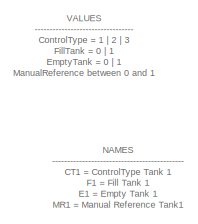
[diagram: root canvas - part 1/2, top left region]
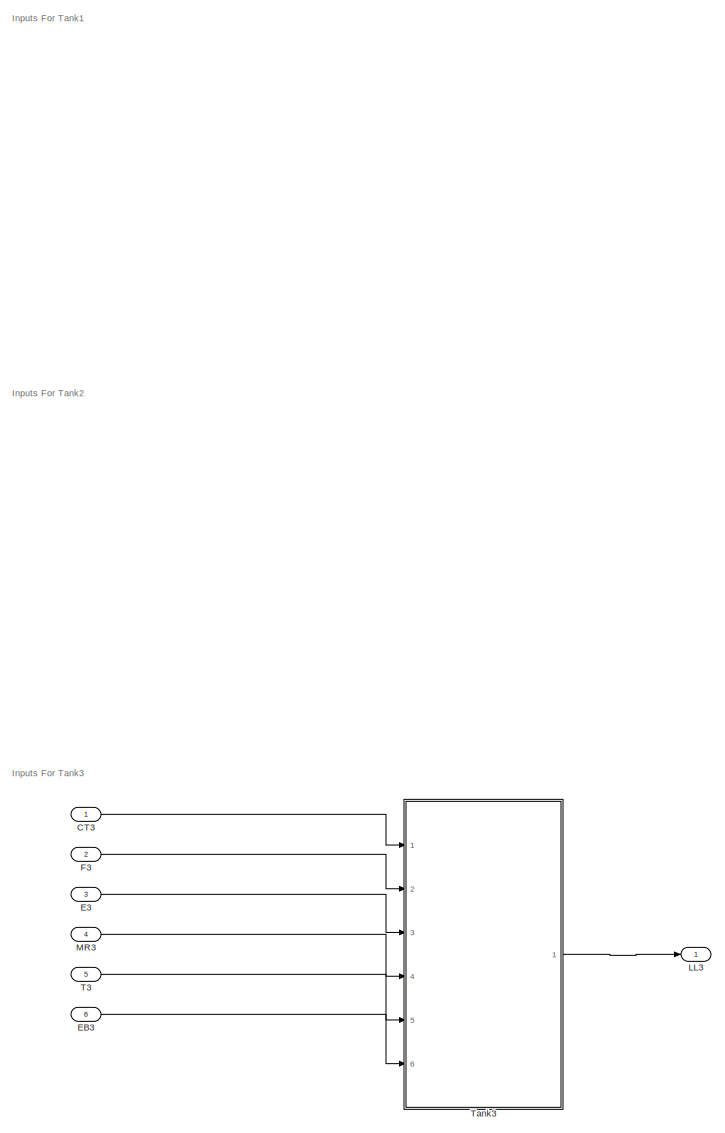
[diagram: root canvas - part 2/2, right side, full height]
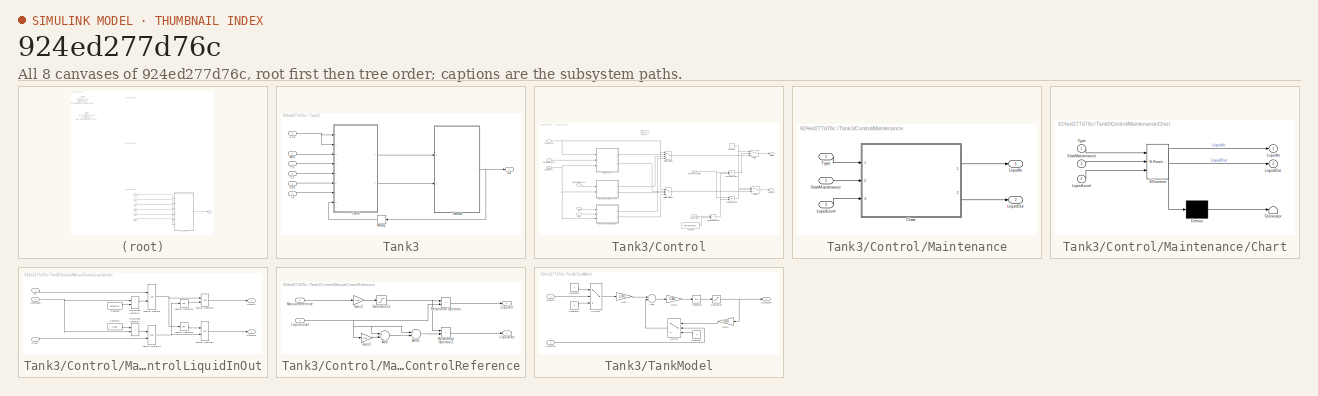
[diagram: thumbnail index - all 8 canvases of the model, root first then tree order]
MODEL slx_924ed277d76c
KIND model
CONFIG AbsTol = auto
CONFIG EnableMultiTasking = off
CONFIG FixedStep = 0.1
CONFIG MaxStep = auto
CONFIG MinStep = auto
CONFIG RelTol = 1e-3
CONFIG SampleTimeConstraint = Unconstrained
CONFIG Solver = FixedStepAuto
CONFIG SolverName = FixedStepAuto
CONFIG StartTime = 0.0
CONFIG StopTime = 300
BLOCK [Inport] CT3
  IconDisplay = Port number
BLOCK [Inport] E3
  IconDisplay = Port number
  Port = 3
BLOCK [Inport] EB3
  IconDisplay = Port number
  Port = 6
BLOCK [Inport] F3
  IconDisplay = Port number
  Port = 2
BLOCK [Outport] LL3
  IconDisplay = Port number
BLOCK [Inport] MR3
  IconDisplay = Port number
  Port = 4
BLOCK [Inport] T3
  IconDisplay = Port number
  Port = 5
BLOCK [SubSystem] Tank3
  Ports = [6, 1]
  RequestExecContextInheritance = off
BLOCK [Inport] Tank3/CT3
  IconDisplay = Port number
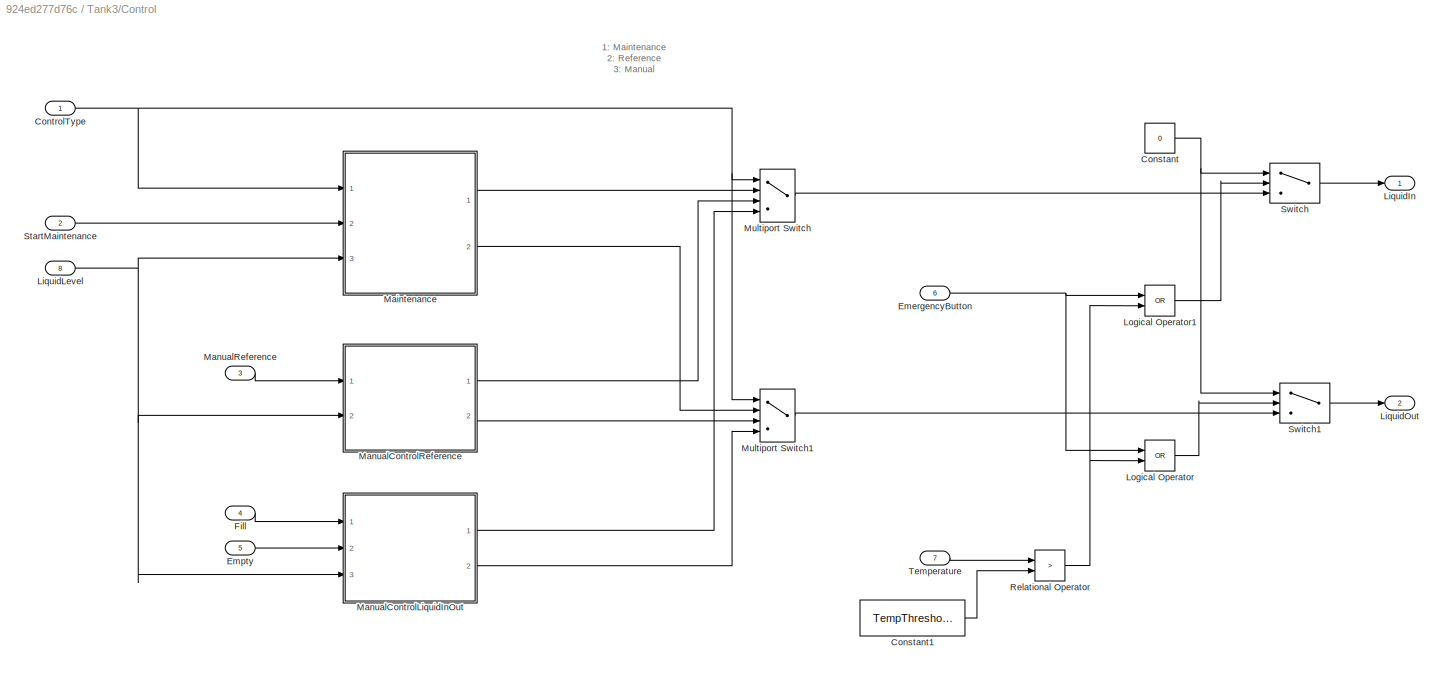
BLOCK [SubSystem] Tank3/Control
  Ports = [8, 2]
  RequestExecContextInheritance = off
BLOCK [Constant] Tank3/Control/Constant
  Value = 0
BLOCK [Constant] Tank3/Control/Constant1
  Value = TempThreshold
BLOCK [Inport] Tank3/Control/ControlType
  IconDisplay = Port number
BLOCK [Inport] Tank3/Control/EmergencyButton
  IconDisplay = Port number
  Port = 6
BLOCK [Inport] Tank3/Control/Empty
  IconDisplay = Port number
  Port = 5
BLOCK [Inport] Tank3/Control/Fill
  IconDisplay = Port number
  Port = 4
BLOCK [Outport] Tank3/Control/LiquidIn
  IconDisplay = Port number
BLOCK [Inport] Tank3/Control/LiquidLevel
  IconDisplay = Port number
  Port = 8
BLOCK [Outport] Tank3/Control/LiquidOut
  IconDisplay = Port number
  Port = 2
BLOCK [Logic] Tank3/Control/Logical Operator
  AllPortsSameDT = off
  Operator = OR
  OutDataTypeStr = boolean
  Ports = [2, 1]
BLOCK [Logic] Tank3/Control/Logical Operator1
  AllPortsSameDT = off
  Operator = OR
  OutDataTypeStr = boolean
  Ports = [2, 1]
BLOCK [SubSystem] Tank3/Control/Maintenance
  Ports = [3, 2]
  RequestExecContextInheritance = off
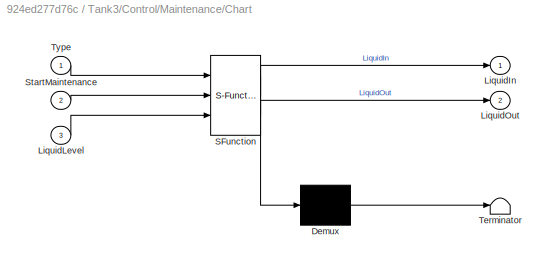
BLOCK [SubSystem] Tank3/Control/Maintenance/Chart
  ErrorFcn = Stateflow.Translate.translate
  PermitHierarchicalResolution = ExplicitOnly
  Ports = [3, 2]
  RequestExecContextInheritance = off
  SFBlockType = Chart
  TreatAsAtomicUnit = on
BLOCK [Demux] Tank3/Control/Maintenance/Chart/ Demux 
  Outputs = 1
  Ports = [1, 1]
BLOCK [S-Function] Tank3/Control/Maintenance/Chart/ SFunction 
  EnableBusSupport = on
  FunctionName = sf_sfun
  Parameters = hmax
  PortCounts = [3 3]
  Ports = [3, 3]
  SFcnIsStateOwnerBlock = off
  SFunctionDeploymentMode = off
  Tag = Stateflow S-Function c00004 1
BLOCK [Terminator] Tank3/Control/Maintenance/Chart/ Terminator 
BLOCK [Outport] Tank3/Control/Maintenance/Chart/LiquidIn
  IconDisplay = Port number
BLOCK [Inport] Tank3/Control/Maintenance/Chart/LiquidLevel
  IconDisplay = Port number
  Port = 3
BLOCK [Outport] Tank3/Control/Maintenance/Chart/LiquidOut
  IconDisplay = Port number
  Port = 2
BLOCK [Inport] Tank3/Control/Maintenance/Chart/StartMaintenance
  IconDisplay = Port number
  Port = 2
BLOCK [Inport] Tank3/Control/Maintenance/Chart/Type
  IconDisplay = Port number
BLOCK [Outport] Tank3/Control/Maintenance/LiquidIn
  IconDisplay = Port number
BLOCK [Inport] Tank3/Control/Maintenance/LiquidLevel
  IconDisplay = Port number
  Port = 3
BLOCK [Outport] Tank3/Control/Maintenance/LiquidOut
  IconDisplay = Port number
  Port = 2
BLOCK [Inport] Tank3/Control/Maintenance/StartMaintenance
  IconDisplay = Port number
  Port = 2
BLOCK [Inport] Tank3/Control/Maintenance/Type
  IconDisplay = Port number
BLOCK [SubSystem] Tank3/Control/ManualControlLiquidInOut
  Ports = [3, 2]
  RequestExecContextInheritance = off
BLOCK [Constant] Tank3/Control/ManualControlLiquidInOut/Constant
  Value = hmax*0.9
BLOCK [Constant] Tank3/Control/ManualControlLiquidInOut/Constant1
  Value = 0.001
BLOCK [Inport] Tank3/Control/ManualControlLiquidInOut/Empty
  IconDisplay = Port number
  Port = 2
BLOCK [Inport] Tank3/Control/ManualControlLiquidInOut/Fill
  IconDisplay = Port number
BLOCK [Outport] Tank3/Control/ManualControlLiquidInOut/LiquidIn
  IconDisplay = Port number
BLOCK [Inport] Tank3/Control/ManualControlLiquidInOut/LiquidLevel
  IconDisplay = Port number
  Port = 3
BLOCK [Outport] Tank3/Control/ManualControlLiquidInOut/LiquidOut
  IconDisplay = Port number
  Port = 2
BLOCK [Logic] Tank3/Control/ManualControlLiquidInOut/Logical Operator
  AllPortsSameDT = off
  OutDataTypeStr = boolean
  Ports = [2, 1]
BLOCK [Logic] Tank3/Control/ManualControlLiquidInOut/Logical Operator1
  AllPortsSameDT = off
  OutDataTypeStr = boolean
  Ports = [2, 1]
BLOCK [Logic] Tank3/Control/ManualControlLiquidInOut/Logical Operator2
  AllPortsSameDT = off
  OutDataTypeStr = boolean
  Ports = [2, 1]
BLOCK [Logic] Tank3/Control/ManualControlLiquidInOut/Logical Operator3
  AllPortsSameDT = off
  Operator = NOT
  OutDataTypeStr = boolean
  Ports = [1, 1]
BLOCK [Logic] Tank3/Control/ManualControlLiquidInOut/Logical Operator4
  AllPortsSameDT = off
  OutDataTypeStr = boolean
  Ports = [2, 1]
BLOCK [Logic] Tank3/Control/ManualControlLiquidInOut/Logical Operator5
  AllPortsSameDT = off
  Operator = NOT
  OutDataTypeStr = boolean
  Ports = [1, 1]
BLOCK [RelationalOperator] Tank3/Control/ManualControlLiquidInOut/Relational Operator1
  InputSameDT = off
  Operator = <
  OutDataTypeStr = boolean
  Ports = [2, 1]
  RndMeth = Simplest
BLOCK [RelationalOperator] Tank3/Control/ManualControlLiquidInOut/Relational Operator2
  InputSameDT = off
  Operator = <
  OutDataTypeStr = boolean
  Ports = [2, 1]
  RndMeth = Simplest
BLOCK [SubSystem] Tank3/Control/ManualControlReference
  Ports = [2, 2]
  RequestExecContextInheritance = off
BLOCK [Sum] Tank3/Control/ManualControlReference/Add
  InputSameDT = off
  Inputs = +-
  OutDataTypeStr = Inherit: Inherit via internal rule
  Ports = [2, 1]
  SaturateOnIntegerOverflow = off
BLOCK [Sum] Tank3/Control/ManualControlReference/Add1
  InputSameDT = off
  Inputs = +-
  OutDataTypeStr = Inherit: Inherit via internal rule
  Ports = [2, 1]
  SaturateOnIntegerOverflow = off
BLOCK [Gain] Tank3/Control/ManualControlReference/Gain1
  Gain = 0.95
  OutDataTypeStr = Inherit: Inherit via internal rule
  ParamDataTypeStr = Inherit: Inherit via internal rule
  SaturateOnIntegerOverflow = off
BLOCK [Gain] Tank3/Control/ManualControlReference/Gain2
  Gain = 0.95
  OutDataTypeStr = Inherit: Inherit via internal rule
  ParamDataTypeStr = Inherit: Inherit via internal rule
  SaturateOnIntegerOverflow = off
BLOCK [Outport] Tank3/Control/ManualControlReference/LiquidIn
  IconDisplay = Port number
BLOCK [Inport] Tank3/Control/ManualControlReference/LiquidLevel
  IconDisplay = Port number
  Port = 2
BLOCK [Outport] Tank3/Control/ManualControlReference/LiquidOut
  IconDisplay = Port number
  Port = 2
BLOCK [Inport] Tank3/Control/ManualControlReference/ManualReference
  IconDisplay = Port number
BLOCK [RelationalOperator] Tank3/Control/ManualControlReference/Relational Operator
  InputSameDT = off
  Operator = >
  OutDataTypeStr = boolean
  Ports = [2, 1]
  RndMeth = Simplest
BLOCK [RelationalOperator] Tank3/Control/ManualControlReference/Relational Operator1
  InputSameDT = off
  Operator = <
  OutDataTypeStr = boolean
  Ports = [2, 1]
  RndMeth = Simplest
BLOCK [Saturate] Tank3/Control/ManualControlReference/Saturation1
  InputPortMap = u0
  LowerLimit = 0
  Ports = [1, 1]
  UpperLimit = hmax*0.9
BLOCK [Inport] Tank3/Control/ManualReference
  IconDisplay = Port number
  Port = 3
BLOCK [MultiPortSwitch] Tank3/Control/Multiport Switch
  InputSameDT = off
  Ports = [4, 1]
  SaturateOnIntegerOverflow = off
BLOCK [MultiPortSwitch] Tank3/Control/Multiport Switch1
  InputSameDT = off
  Ports = [4, 1]
  SaturateOnIntegerOverflow = off
BLOCK [RelationalOperator] Tank3/Control/Relational Operator
  InputSameDT = off
  Operator = >
  OutDataTypeStr = boolean
  Ports = [2, 1]
  RndMeth = Simplest
BLOCK [Inport] Tank3/Control/StartMaintenance
  IconDisplay = Port number
  Port = 2
BLOCK [Switch] Tank3/Control/Switch
  Criteria = u2 > Threshold
  InputSameDT = off
  SaturateOnIntegerOverflow = off
BLOCK [Switch] Tank3/Control/Switch1
  Criteria = u2 > Threshold
  InputSameDT = off
  SaturateOnIntegerOverflow = off
BLOCK [Inport] Tank3/Control/Temperature
  IconDisplay = Port number
  Port = 7
BLOCK [Inport] Tank3/E3
  IconDisplay = Port number
  Port = 3
BLOCK [Inport] Tank3/EB3
  IconDisplay = Port number
  Port = 6
BLOCK [Inport] Tank3/F3
  IconDisplay = Port number
  Port = 2
BLOCK [Outport] Tank3/LL3
  IconDisplay = Port number
BLOCK [Inport] Tank3/MR3
  IconDisplay = Port number
  Port = 4
BLOCK [Memory] Tank3/Memory
BLOCK [Inport] Tank3/T3
  IconDisplay = Port number
  Port = 5
BLOCK [SubSystem] Tank3/TankModel
  Ports = [2, 1]
  RequestExecContextInheritance = off
BLOCK [Sum] Tank3/TankModel/Add1
  InputSameDT = off
  Inputs = +-
  OutDataTypeStr = Inherit: Inherit via internal rule
  Ports = [2, 1]
  SaturateOnIntegerOverflow = off
BLOCK [Constant] Tank3/TankModel/Constant1
  Value = 0
BLOCK [Constant] Tank3/TankModel/Constant2
  Value = 0
BLOCK [Constant] Tank3/TankModel/Constant3
BLOCK [Gain] Tank3/TankModel/Gain
  Gain = 1/R1
  OutDataTypeStr = Inherit: Inherit via internal rule
  ParamDataTypeStr = Inherit: Inherit via internal rule
  SaturateOnIntegerOverflow = off
BLOCK [Gain] Tank3/TankModel/Gain1
  Gain = 1/A1
  OutDataTypeStr = Inherit: Inherit via internal rule
  ParamDataTypeStr = Inherit: Inherit via internal rule
  SaturateOnIntegerOverflow = off
BLOCK [Gain] Tank3/TankModel/Gain2
  Gain = 1/R2
  OutDataTypeStr = Inherit: Inherit via internal rule
  ParamDataTypeStr = Inherit: Inherit via internal rule
  SaturateOnIntegerOverflow = off
BLOCK [Integrator] Tank3/TankModel/Integrator
  Ports = [1, 1]
BLOCK [Inport] Tank3/TankModel/LiquidIn
  IconDisplay = Port number
BLOCK [Outport] Tank3/TankModel/LiquidLevel
  IconDisplay = Port number
BLOCK [Inport] Tank3/TankModel/LiquidOut
  IconDisplay = Port number
  Port = 2
BLOCK [Saturate] Tank3/TankModel/Saturation
  InputPortMap = u0
  LowerLimit = 0
  Ports = [1, 1]
  UpperLimit = hmax
BLOCK [Switch] Tank3/TankModel/Switch
  Criteria = u2 ~= 0
  InputSameDT = off
  SaturateOnIntegerOverflow = off
BLOCK [Switch] Tank3/TankModel/Switch1
  Criteria = u2 ~= 0
  InputSameDT = off
  SaturateOnIntegerOverflow = off
ANNOTATION (root): Inputs For Tank1
ANNOTATION (root): Inputs For Tank2
ANNOTATION (root): Inputs For Tank3
ANNOTATION (root): NAMES -------------------------------------------- CT1 = ControlType Tank 1 F1 = Fill Tank 1 E1 = Empty Tank 1 MR1 = Manual Reference Tank1 T1 = Temperature Tank 1 EB1 = Emergency Button Tank 1 LL1 = Liquid Level 1
ANNOTATION (root): VALUES --------------------------------- ControlType = 1 | 2 | 3 FillTank = 0 | 1 EmptyTank = 0 | 1 ManualReference between 0 and 1 Tempreature between 0 and 100 EmergencyButton = 0 | 1 LiquidLevel between 0 and 1 (hmax)
ANNOTATION Tank3/Control: 1: Maintenance 2: Reference 3: Manual
LINE CT3:1 -> Tank3:1
LINE E3:1 -> Tank3:3
LINE EB3:1 -> Tank3:6
LINE F3:1 -> Tank3:2
LINE MR3:1 -> Tank3:4
LINE T3:1 -> Tank3:5
NET Tank3/CT3:1 -> Tank3/Control:1, Tank3/Control:2
LINE Tank3/Control/Constant1:1 -> Tank3/Control/Relational Operator:2
NET Tank3/Control/Constant:1 -> Tank3/Control/Switch1:1, Tank3/Control/Switch:1
NET Tank3/Control/ControlType:1 -> Tank3/Control/Maintenance:1, Tank3/Control/Multiport Switch1:1, Tank3/Control/Multiport Switch:1
NET Tank3/Control/EmergencyButton:1 -> Tank3/Control/Logical Operator1:1, Tank3/Control/Logical Operator:1
LINE Tank3/Control/Empty:1 -> Tank3/Control/ManualControlLiquidInOut:2
LINE Tank3/Control/Fill:1 -> Tank3/Control/ManualControlLiquidInOut:1
NET Tank3/Control/LiquidLevel:1 -> Tank3/Control/Maintenance:3, Tank3/Control/ManualControlLiquidInOut:3, Tank3/Control/ManualControlReference:2
LINE Tank3/Control/Logical Operator1:1 -> Tank3/Control/Switch:2
LINE Tank3/Control/Logical Operator:1 -> Tank3/Control/Switch1:2
LINE Tank3/Control/Maintenance/Chart:1 -> Tank3/Control/Maintenance/LiquidIn:1
LINE Tank3/Control/Maintenance/Chart:2 -> Tank3/Control/Maintenance/LiquidOut:1
LINE Tank3/Control/Maintenance/LiquidLevel:1 -> Tank3/Control/Maintenance/Chart:3
LINE Tank3/Control/Maintenance/StartMaintenance:1 -> Tank3/Control/Maintenance/Chart:2
LINE Tank3/Control/Maintenance/Type:1 -> Tank3/Control/Maintenance/Chart:1
LINE Tank3/Control/Maintenance:1 -> Tank3/Control/Multiport Switch:2
LINE Tank3/Control/Maintenance:2 -> Tank3/Control/Multiport Switch1:2
LINE Tank3/Control/ManualControlLiquidInOut/Constant1:1 -> Tank3/Control/ManualControlLiquidInOut/Relational Operator2:1
LINE Tank3/Control/ManualControlLiquidInOut/Constant:1 -> Tank3/Control/ManualControlLiquidInOut/Relational Operator1:2
LINE Tank3/Control/ManualControlLiquidInOut/Empty:1 -> Tank3/Control/ManualControlLiquidInOut/Logical Operator1:2
LINE Tank3/Control/ManualControlLiquidInOut/Fill:1 -> Tank3/Control/ManualControlLiquidInOut/Logical Operator:1
NET Tank3/Control/ManualControlLiquidInOut/LiquidLevel:1 -> Tank3/Control/ManualControlLiquidInOut/Relational Operator1:1, Tank3/Control/ManualControlLiquidInOut/Relational Operator2:2
NET Tank3/Control/ManualControlLiquidInOut/Logical Operator1:1 -> Tank3/Control/ManualControlLiquidInOut/Logical Operator3:1, Tank3/Control/ManualControlLiquidInOut/Logical Operator4:2
LINE Tank3/Control/ManualControlLiquidInOut/Logical Operator2:1 -> Tank3/Control/ManualControlLiquidInOut/LiquidIn:1
LINE Tank3/Control/ManualControlLiquidInOut/Logical Operator3:1 -> Tank3/Control/ManualControlLiquidInOut/Logical Operator2:2
LINE Tank3/Control/ManualControlLiquidInOut/Logical Operator4:1 -> Tank3/Control/ManualControlLiquidInOut/LiquidOut:1
LINE Tank3/Control/ManualControlLiquidInOut/Logical Operator5:1 -> Tank3/Control/ManualControlLiquidInOut/Logical Operator4:1
NET Tank3/Control/ManualControlLiquidInOut/Logical Operator:1 -> Tank3/Control/ManualControlLiquidInOut/Logical Operator2:1, Tank3/Control/ManualControlLiquidInOut/Logical Operator5:1
LINE Tank3/Control/ManualControlLiquidInOut/Relational Operator1:1 -> Tank3/Control/ManualControlLiquidInOut/Logical Operator:2
LINE Tank3/Control/ManualControlLiquidInOut/Relational Operator2:1 -> Tank3/Control/ManualControlLiquidInOut/Logical Operator1:1
LINE Tank3/Control/ManualControlLiquidInOut:1 -> Tank3/Control/Multiport Switch:4
LINE Tank3/Control/ManualControlLiquidInOut:2 -> Tank3/Control/Multiport Switch1:4
LINE Tank3/Control/ManualControlReference/Add1:1 -> Tank3/Control/ManualControlReference/Relational Operator1:2
LINE Tank3/Control/ManualControlReference/Add:1 -> Tank3/Control/ManualControlReference/Add1:2
LINE Tank3/Control/ManualControlReference/Gain1:1 -> Tank3/Control/ManualControlReference/Saturation1:1
LINE Tank3/Control/ManualControlReference/Gain2:1 -> Tank3/Control/ManualControlReference/Add:2
NET Tank3/Control/ManualControlReference/LiquidLevel:1 -> Tank3/Control/ManualControlReference/Add1:1, Tank3/Control/ManualControlReference/Add:1, Tank3/Control/ManualControlReference/Gain2:1, Tank3/Control/ManualControlReference/Relational Operator:2
LINE Tank3/Control/ManualControlReference/ManualReference:1 -> Tank3/Control/ManualControlReference/Gain1:1
LINE Tank3/Control/ManualControlReference/Relational Operator1:1 -> Tank3/Control/ManualControlReference/LiquidOut:1
LINE Tank3/Control/ManualControlReference/Relational Operator:1 -> Tank3/Control/ManualControlReference/LiquidIn:1
NET Tank3/Control/ManualControlReference/Saturation1:1 -> Tank3/Control/ManualControlReference/Relational Operator1:1, Tank3/Control/ManualControlReference/Relational Operator:1
LINE Tank3/Control/ManualControlReference:1 -> Tank3/Control/Multiport Switch:3
LINE Tank3/Control/ManualControlReference:2 -> Tank3/Control/Multiport Switch1:3
LINE Tank3/Control/ManualReference:1 -> Tank3/Control/ManualControlReference:1
LINE Tank3/Control/Multiport Switch1:1 -> Tank3/Control/Switch1:3
LINE Tank3/Control/Multiport Switch:1 -> Tank3/Control/Switch:3
NET Tank3/Control/Relational Operator:1 -> Tank3/Control/Logical Operator1:2, Tank3/Control/Logical Operator:2
LINE Tank3/Control/StartMaintenance:1 -> Tank3/Control/Maintenance:2
LINE Tank3/Control/Switch1:1 -> Tank3/Control/LiquidOut:1
LINE Tank3/Control/Switch:1 -> Tank3/Control/LiquidIn:1
LINE Tank3/Control/Temperature:1 -> Tank3/Control/Relational Operator:1
LINE Tank3/Control:1 -> Tank3/TankModel:1
LINE Tank3/Control:2 -> Tank3/TankModel:2
LINE Tank3/E3:1 -> Tank3/Control:5
LINE Tank3/EB3:1 -> Tank3/Control:6
LINE Tank3/F3:1 -> Tank3/Control:4
LINE Tank3/MR3:1 -> Tank3/Control:3
LINE Tank3/Memory:1 -> Tank3/Control:8
LINE Tank3/T3:1 -> Tank3/Control:7
LINE Tank3/TankModel/Add1:1 -> Tank3/TankModel/Gain1:1
LINE Tank3/TankModel/Constant1:1 -> Tank3/TankModel/Switch1:3
LINE Tank3/TankModel/Constant2:1 -> Tank3/TankModel/Switch:3
LINE Tank3/TankModel/Constant3:1 -> Tank3/TankModel/Switch1:1
LINE Tank3/TankModel/Gain1:1 -> Tank3/TankModel/Integrator:1
LINE Tank3/TankModel/Gain2:1 -> Tank3/TankModel/Switch:1
LINE Tank3/TankModel/Gain:1 -> Tank3/TankModel/Add1:1
LINE Tank3/TankModel/Integrator:1 -> Tank3/TankModel/Saturation:1
LINE Tank3/TankModel/LiquidIn:1 -> Tank3/TankModel/Switch1:2
LINE Tank3/TankModel/LiquidOut:1 -> Tank3/TankModel/Switch:2
NET Tank3/TankModel/Saturation:1 -> Tank3/TankModel/Gain2:1, Tank3/TankModel/LiquidLevel:1
LINE Tank3/TankModel/Switch1:1 -> Tank3/TankModel/Gain:1
LINE Tank3/TankModel/Switch:1 -> Tank3/TankModel/Add1:2
NET Tank3/TankModel:1 -> Tank3/LL3:1, Tank3/Memory:1
LINE Tank3:1 -> LL3:1
note: NET lines group one-source signal fan-out (src -> all destinations, sorted); 1:1 wires keep LINE
CHART Tank3/Control/Maintenance/Chart states=4 transitions=7
  STATE_LABEL 'InitialState\nentry: LiquidIn = 0;\n LiquidOut = 0;'
  STATE_LABEL 'Step1\nentry: LiquidIn = 0;\n LiquidOut = 1;'
  STATE_LABEL 'Step2\nentry: LiquidIn = 1;\n LiquidOut = 0;'
  STATE_LABEL 'Step3\nentry: LiquidIn = 0;\n LiquidOut = 1;'
